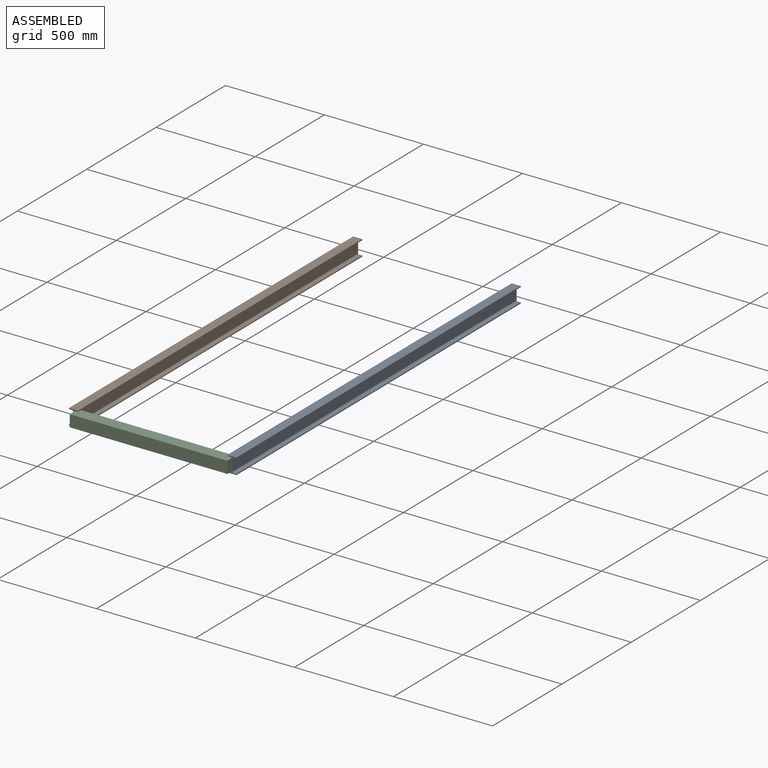
[diagram: assembled view]
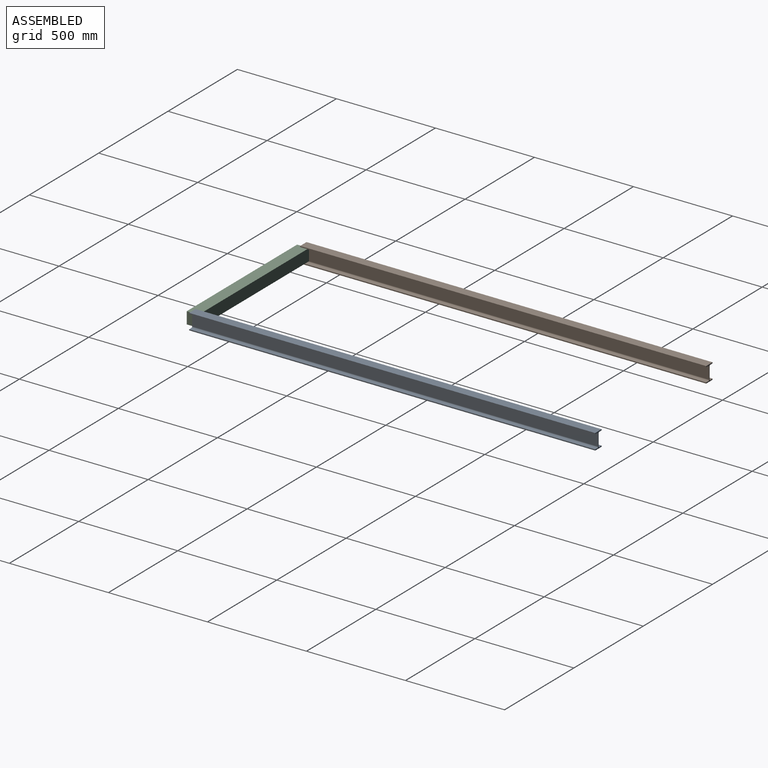
[diagram: assembled view, second angle]
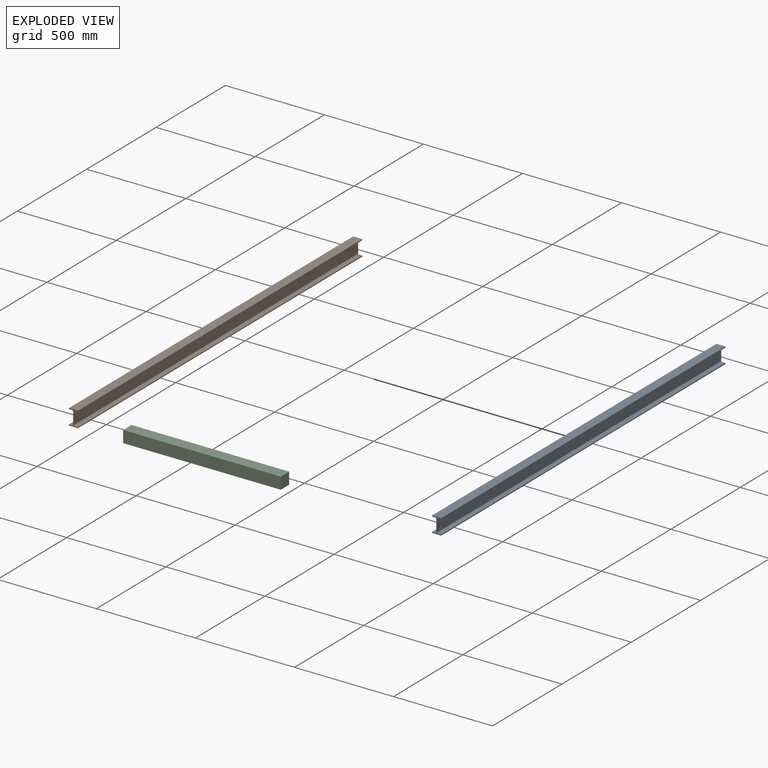
[diagram: exploded view]
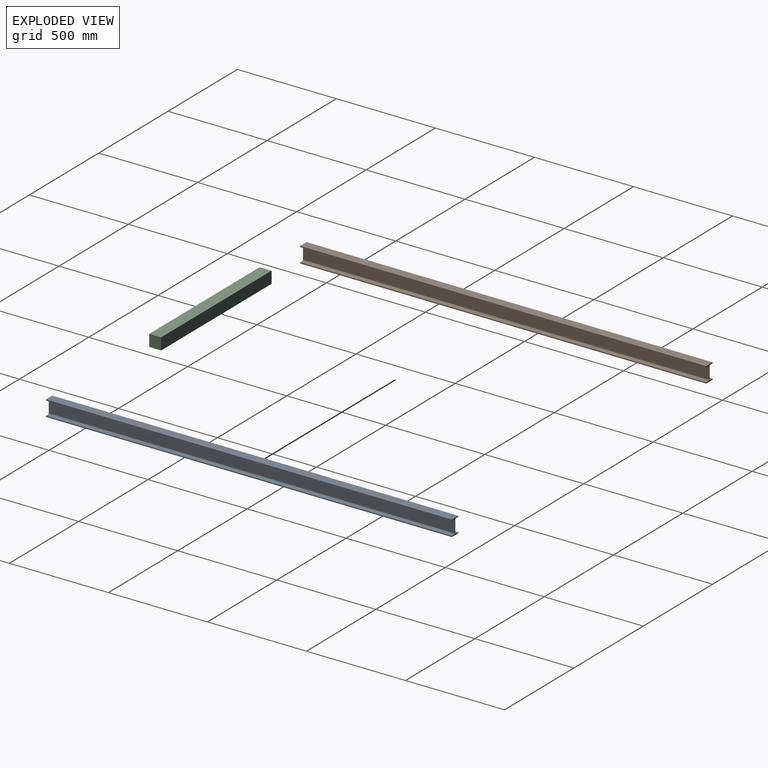
[diagram: exploded view, second angle]
ASSEMBLY  parts=3 mates=2
PART A: 18 faces, bbox 46x2050x80 mm
  f0: plane 2050x59.6mm, normal (1,0,0), area 122180mm2, adj f1,f15,f16,f17
  f1: cylinder r=5mm len=2050mm, axis (0,1,0), area 16100.7mm2, adj f0,f2,f16,f17
  f2: plane 2050x16.1mm, normal (0,0,-1), area 33005mm2, adj f1,f3,f16,f17
  f3: plane 2050x5.2mm, normal (1,0,0), area 10660mm2, adj f2,f4,f16,f17
  f4: plane 2050x46mm, normal (0,0,1), area 94300mm2, adj f3,f5,f16,f17
  f5: plane 2050x5.2mm, normal (-1,0,0), area 10660mm2, adj f4,f6,f16,f17
  f6: plane 2050x16.1mm, normal (0,0,-1), area 33005mm2, adj f5,f7,f16,f17
  f7: cylinder r=5mm len=2050mm, axis (0,1,0), area 16100.7mm2, adj f6,f8,f16,f17
  f8: plane 2050x59.6mm, normal (-1,0,0), area 122180mm2, adj f7,f9,f16,f17
  f9: cylinder r=5mm len=2050mm, axis (0,1,0), area 16100.7mm2, adj f8,f10,f16,f17
  f10: plane 2050x16.1mm, normal (0,0,1), area 33005mm2, adj f9,f11,f16,f17
  f11: plane 2050x5.2mm, normal (-1,0,0), area 10660mm2, adj f10,f12,f16,f17
  f12: plane 2050x46mm, normal (0,0,-1), area 94300mm2, adj f11,f13,f16,f17
  f13: plane 2050x5.2mm, normal (1,0,0), area 10660mm2, adj f12,f14,f16,f17
  f14: plane 2050x16.1mm, normal (0,0,1), area 33005mm2, adj f13,f15,f16,f17
  f15: cylinder r=5mm len=2050mm, axis (0,1,0), area 16100.7mm2, adj f0,f14,f16,f17
  f16: plane 80x46mm, normal (0,-1,0), area 764.3mm2, adj f0,f1,f2,f3,f4,f5,f6,f7
  f17: plane 80x46mm, normal (0,1,0), area 764.3mm2, adj f0,f1,f2,f3,f4,f5,f6,f7
PART B: same geometry as A
PART C: 10 faces, bbox 60x796.2x60 mm
  f0: cylinder r=3.4mm len=790.2mm, axis (0,-1,0), area 16880.9mm2, adj f6,f9
  f1: cylinder r=3.4mm len=790.2mm, axis (0,-1,0), area 16880.9mm2, adj f6,f8
  f2: plane 796.2x60mm, normal (1,0,0), area 47772mm2, adj f3,f5,f6,f7
  f3: plane 796.2x60mm, normal (0,0,1), area 47772mm2, adj f2,f4,f6,f7
  f4: plane 796.2x60mm, normal (-1,0,0), area 47772mm2, adj f3,f5,f6,f7
  f5: plane 796.2x60mm, normal (0,0,-1), area 47772mm2, adj f2,f4,f6,f7
  f6: plane 60x60mm, normal (0,-1,0), area 3527.4mm2, adj f0,f1,f2,f3,f4,f5
  f7: plane 60x60mm, normal (0,1,0), area 3600mm2, adj f2,f3,f4,f5
  f8: plane 6.8x6.8mm, normal (0,-1,0), area 36.3mm2, adj f1
  f9: plane 6.8x6.8mm, normal (0,-1,0), area 36.3mm2, adj f0
PLACE A t=(243.22,893.79,-405.81)mm
PLACE B t=(-556.78,893.79,-405.81)mm
PLACE C rot(axis=(0.58,0.58,-0.58),120deg) t=(241.32,-1156.21,-405.81)mm
MATE fastened C.f7 <-> A.f8  axis (1,0,0) through (241.32,-1156.21,-405.81)mm
MATE fastened C.f6 <-> B.f0  axis (-1,0,0) through (-554.88,-1156.21,-405.81)mm
